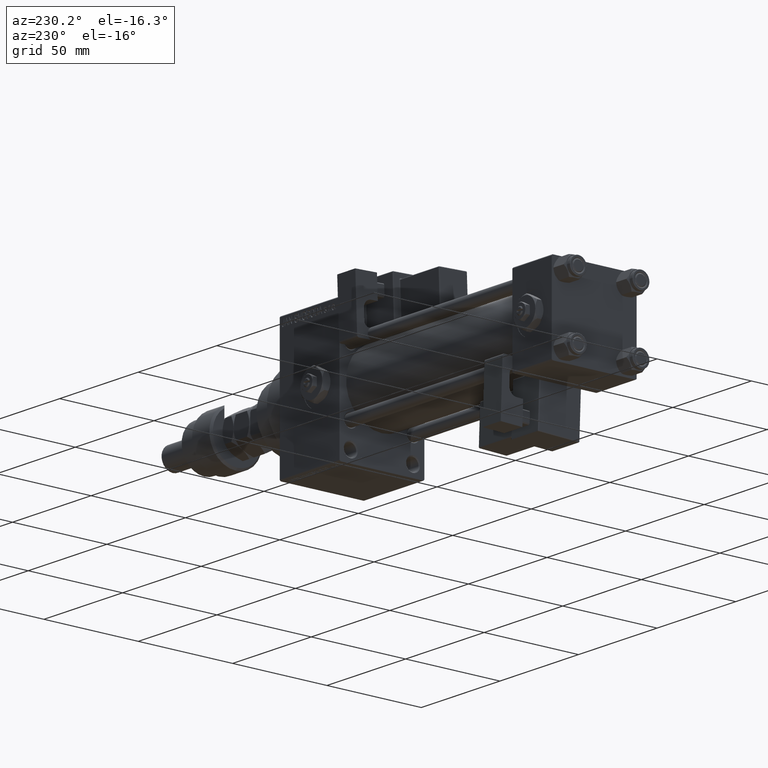
[diagram: clean part render]
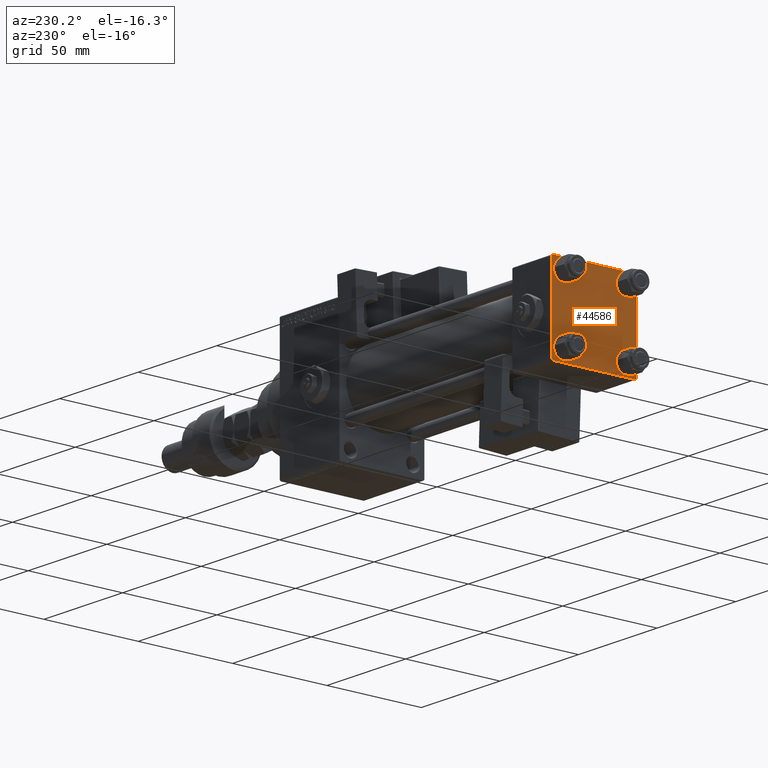
[diagram: same view with one face highlighted and labeled with its STEP entity id]
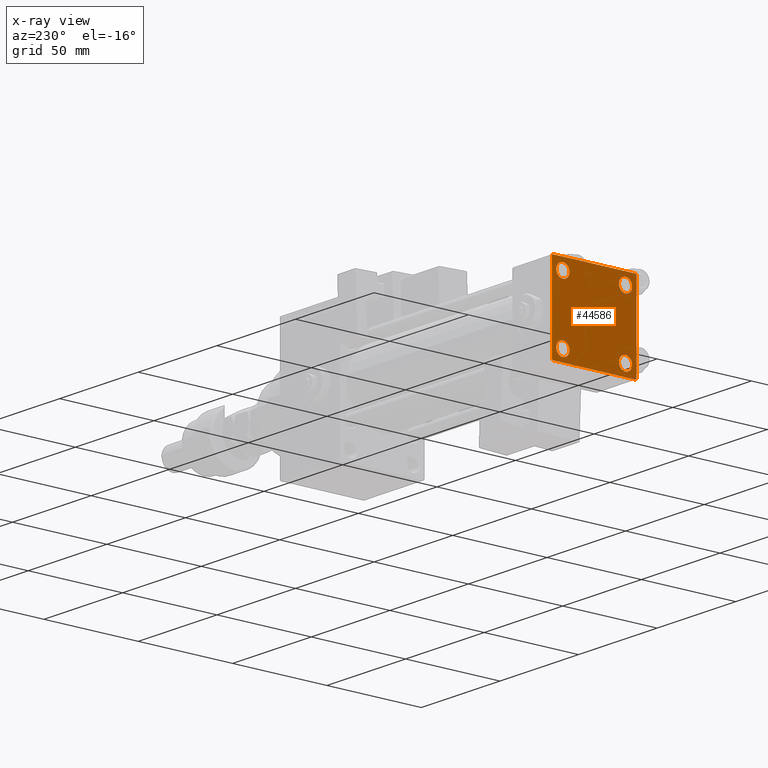
[diagram: x-ray of the same camera — body ghosted, the highlighted face saturated]
A machine part, auxiliary view. The second image highlights one B-rep face of the part: STEP entity #44586.
The next image is the same camera in x-ray: the body ghosted, the highlighted face saturated — about 0% of this face is hidden behind the body in this view.
In plain terms, the highlighted planar face has unit normal (-1, 0, 0).
Its self-contained STEP definition (entity closure, byte-faithful):
#396 = LINE ( 'NONE', #29979, #38903 ) ;
#469 = CIRCLE ( 'NONE', #12710, 3.499999999999996003 ) ;
#1252 = DIRECTION ( 'NONE',  ( 1.000000000000000000, -0.000000000000000000, 0.000000000000000000 ) ) ;
#1790 = CARTESIAN_POINT ( 'NONE',  ( 0.000000000000000000, 21.99999999999999289, -22.49999999999999645 ) ) ;
#2173 = CARTESIAN_POINT ( 'NONE',  ( 0.000000000000000000, 16.59999999999999787, 13.10000000000000675 ) ) ;
#2981 = CARTESIAN_POINT ( 'NONE',  ( 0.000000000000000000, -22.25000000000014566, -22.24999999999984013 ) ) ;
#3049 = ORIENTED_EDGE ( 'NONE', *, *, #53946, .T. ) ;
#3408 = DIRECTION ( 'NONE',  ( 0.000000000000000000, 0.000000000000000000, 1.000000000000000000 ) ) ;
#3420 = VECTOR ( 'NONE', #45947, 1000.000000000000000 ) ;
#3758 = EDGE_CURVE ( 'NONE', #19933, #51285, #33158, .T. ) ;
#4021 = CIRCLE ( 'NONE', #18907, 3.499999999999996003 ) ;
#4263 = AXIS2_PLACEMENT_3D ( 'NONE', #38323, #25961, #20787 ) ;
#4362 = VERTEX_POINT ( 'NONE', #21287 ) ;
#4754 = AXIS2_PLACEMENT_3D ( 'NONE', #49386, #53499, #44465 ) ;
#5681 = CARTESIAN_POINT ( 'NONE',  ( 0.000000000000000000, -16.59999999999999076, 16.60000000000000853 ) ) ;
#6990 = LINE ( 'NONE', #28066, #41330 ) ;
#7296 = VECTOR ( 'NONE', #49416, 1000.000000000000114 ) ;
#7374 = VERTEX_POINT ( 'NONE', #25071 ) ;
#7485 = DIRECTION ( 'NONE',  ( -0.000000000000000000, 0.7071067811865525687, 0.7071067811865425767 ) ) ;
#7535 = AXIS2_PLACEMENT_3D ( 'NONE', #5681, #21588, #34185 ) ;
#8926 = ORIENTED_EDGE ( 'NONE', *, *, #26482, .T. ) ;
#8988 = ORIENTED_EDGE ( 'NONE', *, *, #38565, .T. ) ;
#9275 = EDGE_LOOP ( 'NONE', ( #54222, #45343, #8926, #51929, #42936, #27140, #12721, #47339 ) ) ;
#9740 = FACE_BOUND ( 'NONE', #53743, .T. ) ;
#9747 = VERTEX_POINT ( 'NONE', #35254 ) ;
#9969 = VECTOR ( 'NONE', #15344, 1000.000000000000000 ) ;
#10059 = VECTOR ( 'NONE', #28890, 1000.000000000000000 ) ;
#10793 = FACE_OUTER_BOUND ( 'NONE', #9275, .T. ) ;
#10950 = ORIENTED_EDGE ( 'NONE', *, *, #3758, .T. ) ;
#10982 = VECTOR ( 'NONE', #7485, 999.9999999999998863 ) ;
#11660 = VERTEX_POINT ( 'NONE', #30293 ) ;
#11733 = CIRCLE ( 'NONE', #4754, 3.499999999999996003 ) ;
#11993 = EDGE_CURVE ( 'NONE', #18179, #44329, #40926, .T. ) ;
#12009 = VERTEX_POINT ( 'NONE', #40663 ) ;
#12710 = AXIS2_PLACEMENT_3D ( 'NONE', #23954, #27790, #3408 ) ;
#12721 = ORIENTED_EDGE ( 'NONE', *, *, #35804, .F. ) ;
#12884 = CARTESIAN_POINT ( 'NONE',  ( 0.000000000000000000, -16.59999999999999076, -20.10000000000000497 ) ) ;
#12992 = CARTESIAN_POINT ( 'NONE',  ( 0.000000000000000000, -21.99999999999997868, 22.50000000000000000 ) ) ;
#13459 = EDGE_CURVE ( 'NONE', #48465, #4362, #41073, .T. ) ;
#13894 = LINE ( 'NONE', #39088, #38378 ) ;
#14006 = EDGE_CURVE ( 'NONE', #44329, #9747, #396, .T. ) ;
#14235 = VERTEX_POINT ( 'NONE', #41151 ) ;
#14397 = PLANE ( 'NONE',  #29132 ) ;
#14530 = EDGE_LOOP ( 'NONE', ( #29866, #18700 ) ) ;
#15344 = DIRECTION ( 'NONE',  ( 0.000000000000000000, -0.7071067811865426878, 0.7071067811865524577 ) ) ;
#15559 = VERTEX_POINT ( 'NONE', #12884 ) ;
#15589 = CARTESIAN_POINT ( 'NONE',  ( 0.000000000000000000, 22.50000000000000000, 21.99999999999999645 ) ) ;
#15851 = CIRCLE ( 'NONE', #40362, 3.499999999999996003 ) ;
#15983 = CARTESIAN_POINT ( 'NONE',  ( -0.000000000000000000, -22.24999999999984013, 22.25000000000015277 ) ) ;
#16000 = CARTESIAN_POINT ( 'NONE',  ( 0.000000000000000000, 22.24999999999999645, 22.24999999999999645 ) ) ;
#16255 = LINE ( 'NONE', #15983, #10982 ) ;
#16271 = EDGE_CURVE ( 'NONE', #12009, #19093, #16255, .T. ) ;
#16579 = CARTESIAN_POINT ( 'NONE',  ( 0.000000000000000000, -22.50000000000000000, 22.50000000000000000 ) ) ;
#17046 = ORIENTED_EDGE ( 'NONE', *, *, #36178, .T. ) ;
#17128 = DIRECTION ( 'NONE',  ( 0.000000000000000000, 0.000000000000000000, -1.000000000000000000 ) ) ;
#17990 = DIRECTION ( 'NONE',  ( 0.000000000000000000, 0.000000000000000000, 1.000000000000000000 ) ) ;
#18179 = VERTEX_POINT ( 'NONE', #37639 ) ;
#18700 = ORIENTED_EDGE ( 'NONE', *, *, #51915, .T. ) ;
#18771 = DIRECTION ( 'NONE',  ( -0.000000000000000000, 0.000000000000000000, 1.000000000000000000 ) ) ;
#18907 = AXIS2_PLACEMENT_3D ( 'NONE', #32275, #35832, #40227 ) ;
#19093 = VERTEX_POINT ( 'NONE', #12992 ) ;
#19933 = VERTEX_POINT ( 'NONE', #2173 ) ;
#20222 = DIRECTION ( 'NONE',  ( 1.000000000000000000, -0.000000000000000000, 0.000000000000000000 ) ) ;
#20787 = DIRECTION ( 'NONE',  ( 0.000000000000000000, 0.000000000000000000, 1.000000000000000000 ) ) ;
#20913 = CARTESIAN_POINT ( 'NONE',  ( 0.000000000000000000, 16.59999999999999787, 20.10000000000000142 ) ) ;
#20930 = AXIS2_PLACEMENT_3D ( 'NONE', #22349, #1252, #17990 ) ;
#21031 = DIRECTION ( 'NONE',  ( 0.000000000000000000, 0.000000000000000000, 1.000000000000000000 ) ) ;
#21287 = CARTESIAN_POINT ( 'NONE',  ( 0.000000000000000000, -22.50000000000000000, -21.99999999999997158 ) ) ;
#21588 = DIRECTION ( 'NONE',  ( 1.000000000000000000, -0.000000000000000000, 0.000000000000000000 ) ) ;
#22334 = FACE_BOUND ( 'NONE', #30129, .T. ) ;
#22349 = CARTESIAN_POINT ( 'NONE',  ( 0.000000000000000000, 16.59999999999999787, 16.60000000000000497 ) ) ;
#22379 = CARTESIAN_POINT ( 'NONE',  ( 0.000000000000000000, 16.59999999999999787, -20.10000000000000142 ) ) ;
#23687 = DIRECTION ( 'NONE',  ( 0.000000000000000000, -1.000000000000000000, -7.709882115452476934E-17 ) ) ;
#23954 = CARTESIAN_POINT ( 'NONE',  ( 0.000000000000000000, -16.59999999999999076, 16.60000000000000853 ) ) ;
#24252 = VERTEX_POINT ( 'NONE', #1790 ) ;
#25068 = CARTESIAN_POINT ( 'NONE',  ( 0.000000000000000000, -16.59999999999999076, -16.60000000000000853 ) ) ;
#25071 = CARTESIAN_POINT ( 'NONE',  ( 0.000000000000000000, -16.59999999999999076, 13.10000000000001030 ) ) ;
#25233 = EDGE_CURVE ( 'NONE', #51285, #19933, #31364, .T. ) ;
#25961 = DIRECTION ( 'NONE',  ( 1.000000000000000000, -0.000000000000000000, 0.000000000000000000 ) ) ;
#26482 = EDGE_CURVE ( 'NONE', #24252, #48465, #34419, .T. ) ;
#26600 = CARTESIAN_POINT ( 'NONE',  ( 0.000000000000000000, -16.59999999999999076, -13.10000000000001030 ) ) ;
#27140 = ORIENTED_EDGE ( 'NONE', *, *, #16271, .T. ) ;
#27790 = DIRECTION ( 'NONE',  ( 1.000000000000000000, -0.000000000000000000, 0.000000000000000000 ) ) ;
#27802 = EDGE_CURVE ( 'NONE', #9747, #24252, #13894, .T. ) ;
#28066 = CARTESIAN_POINT ( 'NONE',  ( 0.000000000000000000, 22.50000000000000000, 22.50000000000000355 ) ) ;
#28184 = CARTESIAN_POINT ( 'NONE',  ( 0.000000000000000000, 22.50000000000000000, -22.49999999999999645 ) ) ;
#28635 = DIRECTION ( 'NONE',  ( 1.000000000000000000, -0.000000000000000000, 0.000000000000000000 ) ) ;
#28890 = DIRECTION ( 'NONE',  ( 0.000000000000000000, 0.000000000000000000, -1.000000000000000000 ) ) ;
#29132 = AXIS2_PLACEMENT_3D ( 'NONE', #43439, #30828, #18771 ) ;
#29866 = ORIENTED_EDGE ( 'NONE', *, *, #54132, .T. ) ;
#29979 = CARTESIAN_POINT ( 'NONE',  ( 0.000000000000000000, 22.50000000000000000, 22.50000000000000355 ) ) ;
#30129 = EDGE_LOOP ( 'NONE', ( #3049, #8988 ) ) ;
#30293 = CARTESIAN_POINT ( 'NONE',  ( 0.000000000000000000, 16.59999999999999787, -13.10000000000000675 ) ) ;
#30555 = FACE_BOUND ( 'NONE', #14530, .T. ) ;
#30828 = DIRECTION ( 'NONE',  ( -1.000000000000000000, 0.000000000000000000, -0.000000000000000000 ) ) ;
#31364 = CIRCLE ( 'NONE', #4263, 3.499999999999996003 ) ;
#32275 = CARTESIAN_POINT ( 'NONE',  ( 0.000000000000000000, 16.59999999999999787, -16.60000000000000497 ) ) ;
#33158 = CIRCLE ( 'NONE', #20930, 3.499999999999996003 ) ;
#34185 = DIRECTION ( 'NONE',  ( 0.000000000000000000, 0.000000000000000000, 1.000000000000000000 ) ) ;
#34419 = LINE ( 'NONE', #28184, #3420 ) ;
#35254 = CARTESIAN_POINT ( 'NONE',  ( 0.000000000000000000, 22.50000000000000000, -21.99999999999996803 ) ) ;
#35804 = EDGE_CURVE ( 'NONE', #18179, #19093, #6990, .T. ) ;
#35832 = DIRECTION ( 'NONE',  ( 1.000000000000000000, -0.000000000000000000, 0.000000000000000000 ) ) ;
#36178 = EDGE_CURVE ( 'NONE', #37365, #15559, #11733, .T. ) ;
#37365 = VERTEX_POINT ( 'NONE', #26600 ) ;
#37639 = CARTESIAN_POINT ( 'NONE',  ( 0.000000000000000000, 21.99999999999999289, 22.50000000000000355 ) ) ;
#37687 = ORIENTED_EDGE ( 'NONE', *, *, #40937, .T. ) ;
#38323 = CARTESIAN_POINT ( 'NONE',  ( 0.000000000000000000, 16.59999999999999787, 16.60000000000000497 ) ) ;
#38378 = VECTOR ( 'NONE', #42111, 1000.000000000000000 ) ;
#38565 = EDGE_CURVE ( 'NONE', #38664, #11660, #50003, .T. ) ;
#38664 = VERTEX_POINT ( 'NONE', #22379 ) ;
#38903 = VECTOR ( 'NONE', #17128, 1000.000000000000000 ) ;
#39088 = CARTESIAN_POINT ( 'NONE',  ( 0.000000000000000000, 22.25000000000014566, -22.24999999999984013 ) ) ;
#39664 = EDGE_LOOP ( 'NONE', ( #53341, #10950 ) ) ;
#40227 = DIRECTION ( 'NONE',  ( 0.000000000000000000, 0.000000000000000000, 1.000000000000000000 ) ) ;
#40362 = AXIS2_PLACEMENT_3D ( 'NONE', #25068, #28635, #45375 ) ;
#40663 = CARTESIAN_POINT ( 'NONE',  ( 0.000000000000000000, -22.50000000000000000, 22.00000000000000000 ) ) ;
#40926 = LINE ( 'NONE', #16000, #7296 ) ;
#40937 = EDGE_CURVE ( 'NONE', #15559, #37365, #15851, .T. ) ;
#41030 = CARTESIAN_POINT ( 'NONE',  ( 0.000000000000000000, 16.59999999999999787, -16.60000000000000497 ) ) ;
#41073 = LINE ( 'NONE', #2981, #9969 ) ;
#41151 = CARTESIAN_POINT ( 'NONE',  ( 0.000000000000000000, -16.59999999999999076, 20.10000000000000853 ) ) ;
#41330 = VECTOR ( 'NONE', #23687, 1000.000000000000000 ) ;
#41499 = LINE ( 'NONE', #16579, #10059 ) ;
#42111 = DIRECTION ( 'NONE',  ( -0.000000000000000000, -0.7071067811865426878, -0.7071067811865524577 ) ) ;
#42936 = ORIENTED_EDGE ( 'NONE', *, *, #48730, .F. ) ;
#43439 = CARTESIAN_POINT ( 'NONE',  ( 0.000000000000000000, 0.000000000000000000, 0.000000000000000000 ) ) ;
#44329 = VERTEX_POINT ( 'NONE', #15589 ) ;
#44465 = DIRECTION ( 'NONE',  ( 0.000000000000000000, 0.000000000000000000, 1.000000000000000000 ) ) ;
#44586 = ADVANCED_FACE ( 'NONE', ( #30555, #9740, #22334, #51928, #10793 ), #14397, .T. ) ;
#45056 = CARTESIAN_POINT ( 'NONE',  ( 0.000000000000000000, -21.99999999999997158, -22.50000000000000711 ) ) ;
#45343 = ORIENTED_EDGE ( 'NONE', *, *, #27802, .T. ) ;
#45375 = DIRECTION ( 'NONE',  ( 0.000000000000000000, 0.000000000000000000, 1.000000000000000000 ) ) ;
#45947 = DIRECTION ( 'NONE',  ( 0.000000000000000000, -1.000000000000000000, -2.312964634635742957E-16 ) ) ;
#46530 = AXIS2_PLACEMENT_3D ( 'NONE', #41030, #20222, #21031 ) ;
#46911 = CIRCLE ( 'NONE', #7535, 3.499999999999996003 ) ;
#47339 = ORIENTED_EDGE ( 'NONE', *, *, #11993, .T. ) ;
#48465 = VERTEX_POINT ( 'NONE', #45056 ) ;
#48730 = EDGE_CURVE ( 'NONE', #12009, #4362, #41499, .T. ) ;
#49386 = CARTESIAN_POINT ( 'NONE',  ( 0.000000000000000000, -16.59999999999999076, -16.60000000000000853 ) ) ;
#49416 = DIRECTION ( 'NONE',  ( 0.000000000000000000, 0.7071067811865474617, -0.7071067811865474617 ) ) ;
#50003 = CIRCLE ( 'NONE', #46530, 3.499999999999996003 ) ;
#51285 = VERTEX_POINT ( 'NONE', #20913 ) ;
#51915 = EDGE_CURVE ( 'NONE', #7374, #14235, #469, .T. ) ;
#51928 = FACE_BOUND ( 'NONE', #39664, .T. ) ;
#51929 = ORIENTED_EDGE ( 'NONE', *, *, #13459, .T. ) ;
#53341 = ORIENTED_EDGE ( 'NONE', *, *, #25233, .T. ) ;
#53499 = DIRECTION ( 'NONE',  ( 1.000000000000000000, -0.000000000000000000, 0.000000000000000000 ) ) ;
#53743 = EDGE_LOOP ( 'NONE', ( #17046, #37687 ) ) ;
#53946 = EDGE_CURVE ( 'NONE', #11660, #38664, #4021, .T. ) ;
#54132 = EDGE_CURVE ( 'NONE', #14235, #7374, #46911, .T. ) ;
#54222 = ORIENTED_EDGE ( 'NONE', *, *, #14006, .T. ) ;